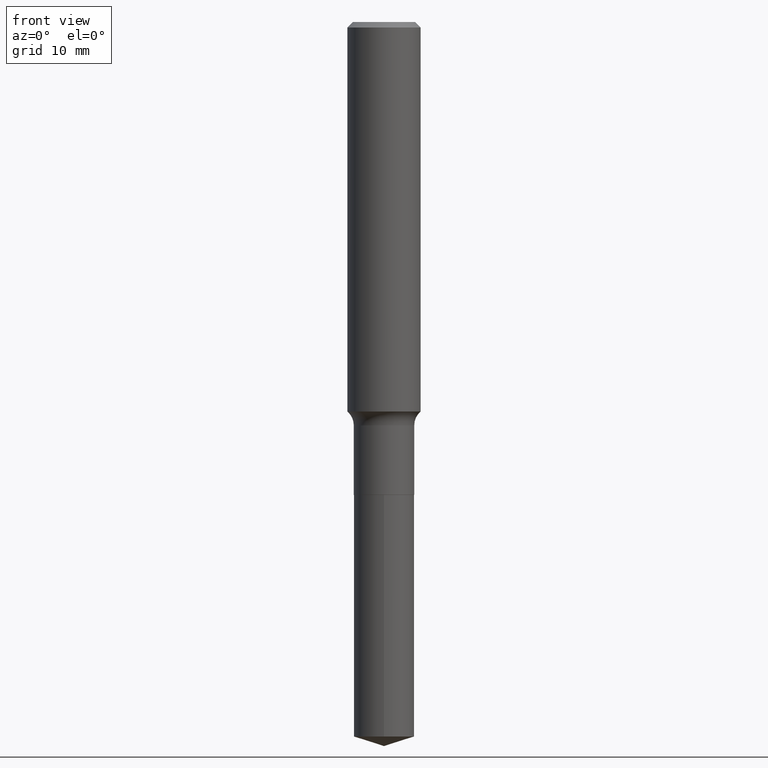
[diagram: clean part render]
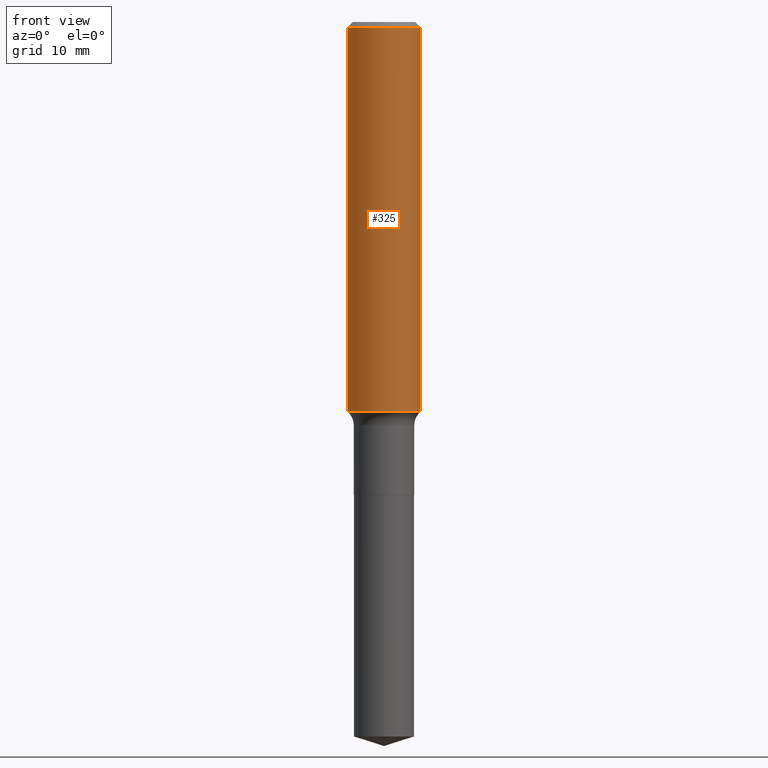
[diagram: same view with one face highlighted and labeled with its STEP entity id]
A machine part, front view. The second image highlights one B-rep face of the part: STEP entity #325.
In plain terms, the highlighted cylindrical surface (partial cylindrical patch) has radius 4.0005 mm, axis along (-0, 0, 1).
Its self-contained STEP definition (entity closure, byte-faithful):
#3 = DIRECTION ( 'NONE',  ( 1.000000000000000000, -6.982962677686267499E-15, 4.876176775795936353E-29 ) ) ;
#28 = EDGE_CURVE ( 'NONE', #84, #105, #141, .T. ) ;
#60 = ORIENTED_EDGE ( 'NONE', *, *, #196, .F. ) ;
#84 = VERTEX_POINT ( 'NONE', #257 ) ;
#94 = ORIENTED_EDGE ( 'NONE', *, *, #308, .T. ) ;
#105 = VERTEX_POINT ( 'NONE', #277 ) ;
#107 = DIRECTION ( 'NONE',  ( 1.000000000000000000, -6.982962677686265922E-15, 0.000000000000000000 ) ) ;
#121 = VECTOR ( 'NONE', #195, 39.37007874015748143 ) ;
#141 = CIRCLE ( 'NONE', #162, 0.1575000000000000011 ) ;
#157 = CARTESIAN_POINT ( 'NONE',  ( 0.1575000000000002232, -6.941308745199630134E-15, -1.673069839576900142 ) ) ;
#162 = AXIS2_PLACEMENT_3D ( 'NONE', #442, #477, #107 ) ;
#179 = CARTESIAN_POINT ( 'NONE',  ( 0.1575000000000000844, -1.099816621735587677E-15, 7.679978421878603638E-30 ) ) ;
#195 = DIRECTION ( 'NONE',  ( -2.445468806185136877E-29, 3.491481338843145188E-15, 1.000000000000000000 ) ) ;
#196 = EDGE_CURVE ( 'NONE', #378, #84, #341, .T. ) ;
#207 = VECTOR ( 'NONE', #294, 39.37007874015748143 ) ;
#222 = ORIENTED_EDGE ( 'NONE', *, *, #28, .F. ) ;
#241 = AXIS2_PLACEMENT_3D ( 'NONE', #318, #425, #3 ) ;
#243 = EDGE_LOOP ( 'NONE', ( #60, #406, #94, #222 ) ) ;
#244 = CARTESIAN_POINT ( 'NONE',  ( 4.091440103254479694E-29, -5.841492123464042654E-15, -1.673069839576900142 ) ) ;
#257 = CARTESIAN_POINT ( 'NONE',  ( -0.1575000000000000011, -1.842884376224946844E-15, -0.02362500000000015282 ) ) ;
#277 = CARTESIAN_POINT ( 'NONE',  ( 0.1575000000000000011, -1.182302868365756679E-15, -0.02362500000000015282 ) ) ;
#289 = CIRCLE ( 'NONE', #349, 0.1575000000000001954 ) ;
#294 = DIRECTION ( 'NONE',  ( -2.445468806185136877E-29, 3.491481338843145188E-15, 1.000000000000000000 ) ) ;
#308 = EDGE_CURVE ( 'NONE', #373, #105, #484, .T. ) ;
#314 = CARTESIAN_POINT ( 'NONE',  ( -0.1575000000000002232, -4.722387314641883473E-15, -1.673069839576900142 ) ) ;
#318 = CARTESIAN_POINT ( 'NONE',  ( 0.000000000000000000, 0.000000000000000000, 0.000000000000000000 ) ) ;
#321 = FACE_OUTER_BOUND ( 'NONE', #243, .T. ) ;
#325 = ADVANCED_FACE ( 'NONE', ( #321 ), #355, .T. ) ;
#326 = DIRECTION ( 'NONE',  ( 1.000000000000000000, -6.982962677686265922E-15, 0.000000000000000000 ) ) ;
#341 = LINE ( 'NONE', #490, #121 ) ;
#349 = AXIS2_PLACEMENT_3D ( 'NONE', #244, #389, #326 ) ;
#355 = CYLINDRICAL_SURFACE ( 'NONE', #241, 0.1575000000000000844 ) ;
#373 = VERTEX_POINT ( 'NONE', #157 ) ;
#378 = VERTEX_POINT ( 'NONE', #314 ) ;
#389 = DIRECTION ( 'NONE',  ( -2.445468806185136597E-29, 3.491481338843145583E-15, 1.000000000000000000 ) ) ;
#406 = ORIENTED_EDGE ( 'NONE', *, *, #474, .T. ) ;
#425 = DIRECTION ( 'NONE',  ( -2.445468806185136597E-29, 3.491481338843145583E-15, 1.000000000000000000 ) ) ;
#442 = CARTESIAN_POINT ( 'NONE',  ( 5.777420054612421980E-31, -8.248624663016985234E-17, -0.02362500000000015282 ) ) ;
#474 = EDGE_CURVE ( 'NONE', #378, #373, #289, .T. ) ;
#477 = DIRECTION ( 'NONE',  ( -2.445468806185136597E-29, 3.491481338843145583E-15, 1.000000000000000000 ) ) ;
#484 = LINE ( 'NONE', #179, #207 ) ;
#490 = CARTESIAN_POINT ( 'NONE',  ( -0.1575000000000000844, 1.119104808822158392E-15, -7.747322767151481189E-30 ) ) ;